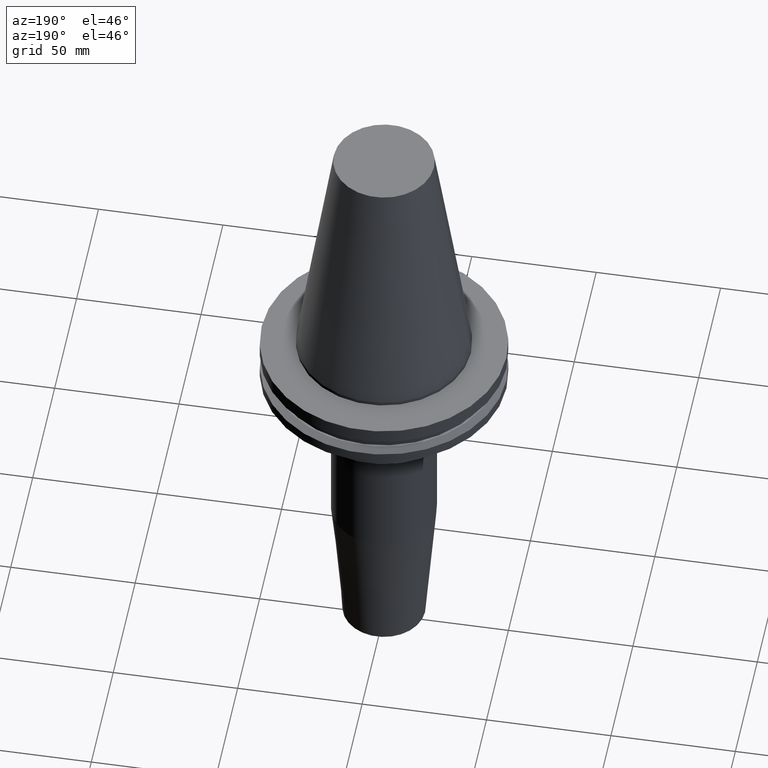
[diagram: clean part render]
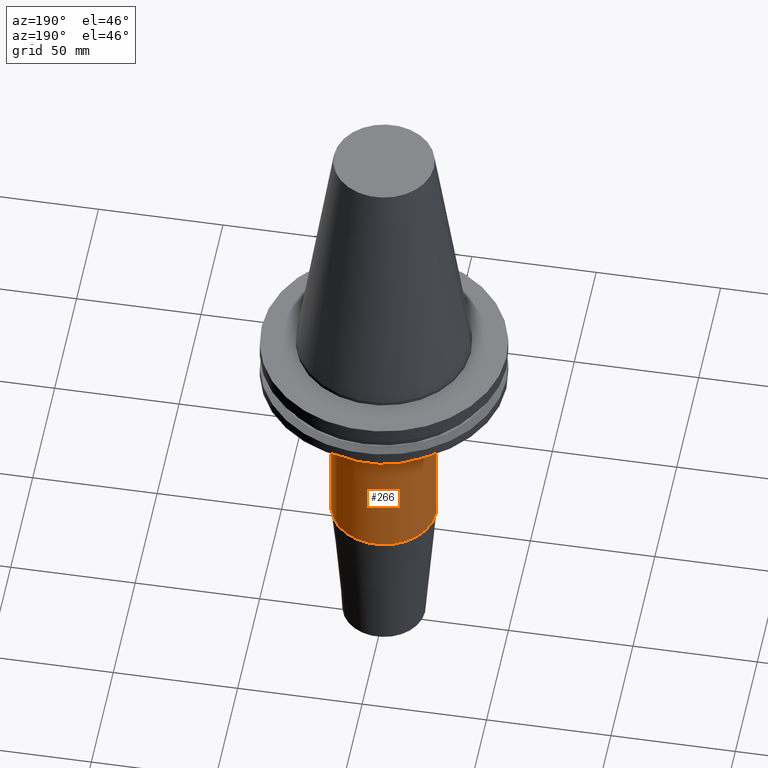
[diagram: same view with one face highlighted and labeled with its STEP entity id]
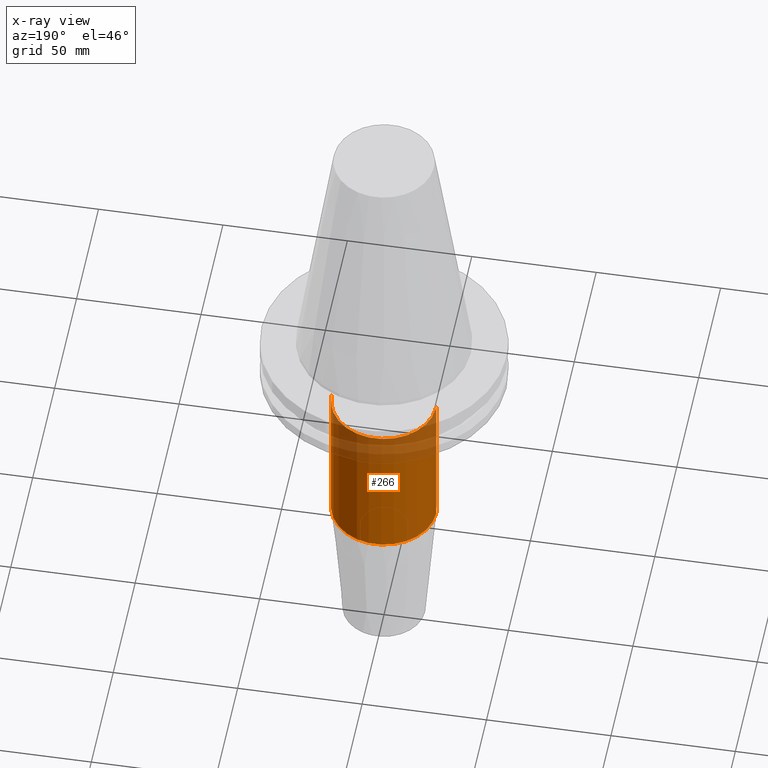
[diagram: x-ray of the same camera — body ghosted, the highlighted face saturated]
A machine part, auxiliary view. The second image highlights one B-rep face of the part: STEP entity #266.
The next image is the same camera in x-ray: the body ghosted, the highlighted face saturated — about 27% of this face is hidden behind the body in this view.
In plain terms, the highlighted cylindrical surface (partial cylindrical patch) has radius 21 mm, axis along (-0, -0, 1).
Its self-contained STEP definition (entity closure, byte-faithful):
#70 = LINE ( 'NONE', #793, #671 ) ;
#71 = CARTESIAN_POINT ( 'NONE',  ( 21.00000000000000000, 0.000000000000000000, -35.04999999999999716 ) ) ;
#74 = DIRECTION ( 'NONE',  ( -0.000000000000000000, -0.000000000000000000, 1.000000000000000000 ) ) ;
#128 = CYLINDRICAL_SURFACE ( 'NONE', #617, 21.00000000000000000 ) ;
#130 = DIRECTION ( 'NONE',  ( -0.000000000000000000, -0.000000000000000000, 1.000000000000000000 ) ) ;
#141 = ORIENTED_EDGE ( 'NONE', *, *, #384, .F. ) ;
#160 = VERTEX_POINT ( 'NONE', #708 ) ;
#203 = VECTOR ( 'NONE', #591, 1000.000000000000000 ) ;
#204 = CARTESIAN_POINT ( 'NONE',  ( 0.000000000000000000, 0.000000000000000000, -95.22207868720845170 ) ) ;
#207 = DIRECTION ( 'NONE',  ( 1.000000000000000000, 0.000000000000000000, 0.000000000000000000 ) ) ;
#266 = ADVANCED_FACE ( 'NONE', ( #775 ), #128, .T. ) ;
#275 = CIRCLE ( 'NONE', #758, 21.00000000000000000 ) ;
#293 = EDGE_CURVE ( 'NONE', #557, #777, #780, .T. ) ;
#332 = LINE ( 'NONE', #339, #203 ) ;
#338 = DIRECTION ( 'NONE',  ( 1.000000000000000000, 0.000000000000000000, 0.000000000000000000 ) ) ;
#339 = CARTESIAN_POINT ( 'NONE',  ( -21.00000000000000000, 2.571758278209441661E-15, 0.000000000000000000 ) ) ;
#384 = EDGE_CURVE ( 'NONE', #692, #557, #70, .T. ) ;
#400 = EDGE_CURVE ( 'NONE', #692, #160, #275, .T. ) ;
#407 = CARTESIAN_POINT ( 'NONE',  ( 21.00000000000000000, 0.000000000000000000, -95.22207868720845170 ) ) ;
#417 = CARTESIAN_POINT ( 'NONE',  ( -21.00000000000000000, 2.571758278209441661E-15, -35.04999999999999716 ) ) ;
#439 = DIRECTION ( 'NONE',  ( 1.000000000000000000, 0.000000000000000000, 0.000000000000000000 ) ) ;
#554 = EDGE_LOOP ( 'NONE', ( #855, #722, #666, #141 ) ) ;
#557 = VERTEX_POINT ( 'NONE', #71 ) ;
#575 = AXIS2_PLACEMENT_3D ( 'NONE', #725, #788, #207 ) ;
#591 = DIRECTION ( 'NONE',  ( -0.000000000000000000, -0.000000000000000000, 1.000000000000000000 ) ) ;
#617 = AXIS2_PLACEMENT_3D ( 'NONE', #717, #130, #439 ) ;
#643 = EDGE_CURVE ( 'NONE', #160, #777, #332, .T. ) ;
#666 = ORIENTED_EDGE ( 'NONE', *, *, #293, .F. ) ;
#671 = VECTOR ( 'NONE', #800, 1000.000000000000000 ) ;
#692 = VERTEX_POINT ( 'NONE', #407 ) ;
#708 = CARTESIAN_POINT ( 'NONE',  ( -21.00000000000000000, 2.571758278209441661E-15, -95.22207868720845170 ) ) ;
#717 = CARTESIAN_POINT ( 'NONE',  ( 0.000000000000000000, 0.000000000000000000, 0.000000000000000000 ) ) ;
#722 = ORIENTED_EDGE ( 'NONE', *, *, #643, .T. ) ;
#725 = CARTESIAN_POINT ( 'NONE',  ( 0.000000000000000000, 0.000000000000000000, -35.04999999999999716 ) ) ;
#758 = AXIS2_PLACEMENT_3D ( 'NONE', #204, #74, #338 ) ;
#775 = FACE_OUTER_BOUND ( 'NONE', #554, .T. ) ;
#777 = VERTEX_POINT ( 'NONE', #417 ) ;
#780 = CIRCLE ( 'NONE', #575, 21.00000000000000000 ) ;
#788 = DIRECTION ( 'NONE',  ( -0.000000000000000000, -0.000000000000000000, 1.000000000000000000 ) ) ;
#793 = CARTESIAN_POINT ( 'NONE',  ( 21.00000000000000000, 0.000000000000000000, 0.000000000000000000 ) ) ;
#800 = DIRECTION ( 'NONE',  ( -0.000000000000000000, -0.000000000000000000, 1.000000000000000000 ) ) ;
#855 = ORIENTED_EDGE ( 'NONE', *, *, #400, .T. ) ;